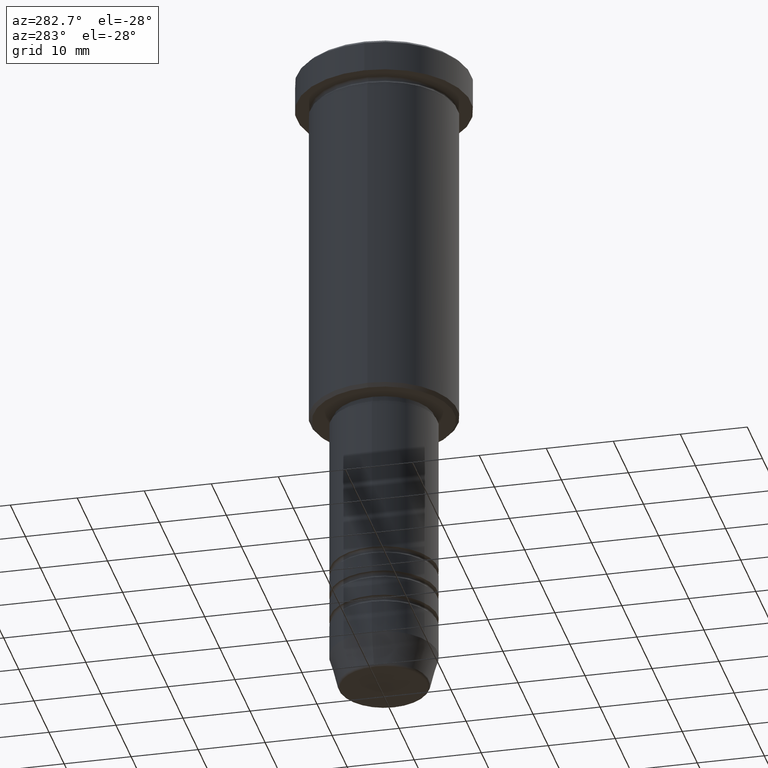
[diagram: clean part render]
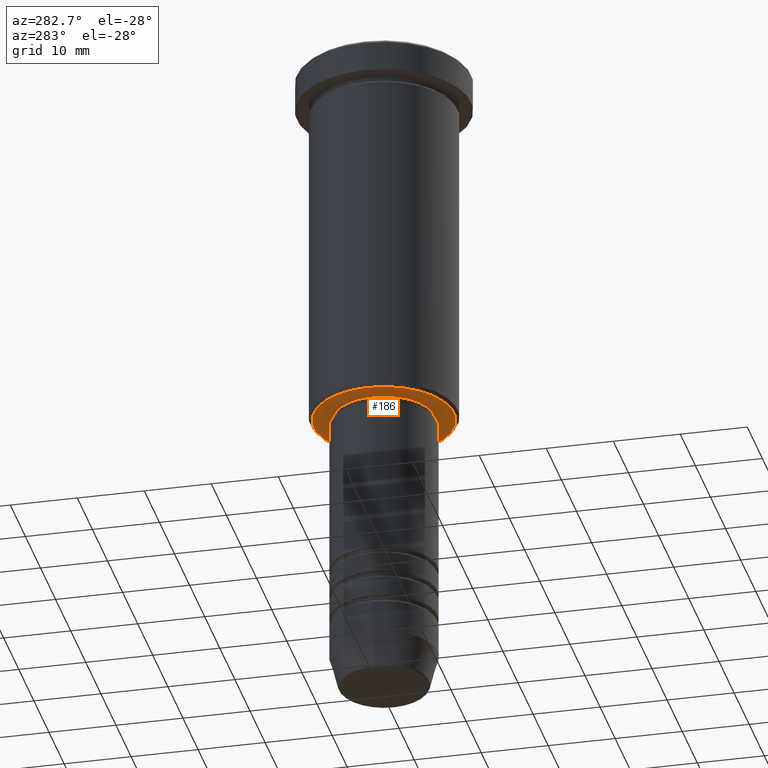
[diagram: same view with one face highlighted and labeled with its STEP entity id]
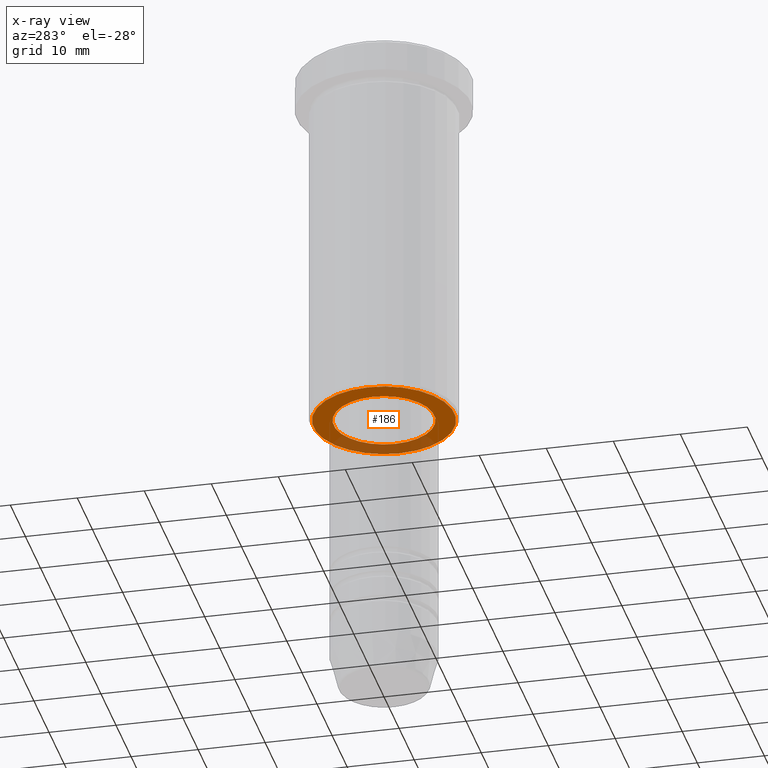
[diagram: x-ray of the same camera — body ghosted, the highlighted face saturated]
A machine part, auxiliary view. The second image highlights one B-rep face of the part: STEP entity #186.
The next image is the same camera in x-ray: the body ghosted, the highlighted face saturated — about 27% of this face is hidden behind the body in this view.
In plain terms, the highlighted planar face has unit normal (0, 0, -1).
Its self-contained STEP definition (entity closure, byte-faithful):
#9 = ORIENTED_EDGE ( 'NONE', *, *, #64, .T. ) ;
#53 = CARTESIAN_POINT ( 'NONE',  ( 0.000000000000000000, 0.000000000000000000, -56.00000000000000000 ) ) ;
#61 = DIRECTION ( 'NONE',  ( 0.000000000000000000, 0.000000000000000000, -1.000000000000000000 ) ) ;
#64 = EDGE_CURVE ( 'NONE', #674, #755, #96, .T. ) ;
#96 = CIRCLE ( 'NONE', #999, 10.50000000000000888 ) ;
#151 = AXIS2_PLACEMENT_3D ( 'NONE', #53, #61, #597 ) ;
#164 = CARTESIAN_POINT ( 'NONE',  ( 7.500000000000000000, 0.000000000000000000, -56.00000000000000000 ) ) ;
#166 = CARTESIAN_POINT ( 'NONE',  ( -10.50000000000000888, 1.316495309083405209E-15, -56.00000000000000000 ) ) ;
#186 = ADVANCED_FACE ( 'NONE', ( #1135, #877 ), #513, .T. ) ;
#194 = VERTEX_POINT ( 'NONE', #164 ) ;
#239 = EDGE_CURVE ( 'NONE', #379, #194, #352, .T. ) ;
#251 = CARTESIAN_POINT ( 'NONE',  ( 10.50000000000000888, 0.000000000000000000, -56.00000000000000000 ) ) ;
#252 = CARTESIAN_POINT ( 'NONE',  ( 0.000000000000000000, 0.000000000000000000, -56.00000000000000000 ) ) ;
#258 = DIRECTION ( 'NONE',  ( 0.000000000000000000, 0.000000000000000000, -1.000000000000000000 ) ) ;
#319 = AXIS2_PLACEMENT_3D ( 'NONE', #519, #258, #795 ) ;
#352 = CIRCLE ( 'NONE', #763, 7.500000000000000000 ) ;
#379 = VERTEX_POINT ( 'NONE', #716 ) ;
#382 = DIRECTION ( 'NONE',  ( -1.000000000000000000, 0.000000000000000000, 0.000000000000000000 ) ) ;
#396 = EDGE_CURVE ( 'NONE', #194, #379, #926, .T. ) ;
#490 = CIRCLE ( 'NONE', #151, 10.50000000000000888 ) ;
#513 = PLANE ( 'NONE',  #319 ) ;
#519 = CARTESIAN_POINT ( 'NONE',  ( 0.000000000000000000, 11.00000000000000000, -56.00000000000000000 ) ) ;
#573 = EDGE_LOOP ( 'NONE', ( #1145, #641 ) ) ;
#597 = DIRECTION ( 'NONE',  ( -1.000000000000000000, 0.000000000000000000, 0.000000000000000000 ) ) ;
#623 = EDGE_CURVE ( 'NONE', #755, #674, #490, .T. ) ;
#641 = ORIENTED_EDGE ( 'NONE', *, *, #239, .T. ) ;
#674 = VERTEX_POINT ( 'NONE', #166 ) ;
#699 = EDGE_LOOP ( 'NONE', ( #873, #9 ) ) ;
#716 = CARTESIAN_POINT ( 'NONE',  ( -7.500000000000000000, 9.184850993605147944E-16, -56.00000000000000000 ) ) ;
#722 = CARTESIAN_POINT ( 'NONE',  ( 0.000000000000000000, 0.000000000000000000, -56.00000000000000000 ) ) ;
#755 = VERTEX_POINT ( 'NONE', #251 ) ;
#763 = AXIS2_PLACEMENT_3D ( 'NONE', #252, #979, #1167 ) ;
#776 = DIRECTION ( 'NONE',  ( 0.000000000000000000, 0.000000000000000000, -1.000000000000000000 ) ) ;
#795 = DIRECTION ( 'NONE',  ( -1.000000000000000000, 0.000000000000000000, -0.000000000000000000 ) ) ;
#815 = AXIS2_PLACEMENT_3D ( 'NONE', #722, #1100, #1079 ) ;
#845 = CARTESIAN_POINT ( 'NONE',  ( 0.000000000000000000, 0.000000000000000000, -56.00000000000000000 ) ) ;
#873 = ORIENTED_EDGE ( 'NONE', *, *, #623, .T. ) ;
#877 = FACE_BOUND ( 'NONE', #573, .T. ) ;
#926 = CIRCLE ( 'NONE', #815, 7.500000000000000000 ) ;
#979 = DIRECTION ( 'NONE',  ( -0.000000000000000000, -0.000000000000000000, 1.000000000000000000 ) ) ;
#999 = AXIS2_PLACEMENT_3D ( 'NONE', #845, #776, #382 ) ;
#1079 = DIRECTION ( 'NONE',  ( 1.000000000000000000, 0.000000000000000000, 0.000000000000000000 ) ) ;
#1100 = DIRECTION ( 'NONE',  ( -0.000000000000000000, -0.000000000000000000, 1.000000000000000000 ) ) ;
#1135 = FACE_OUTER_BOUND ( 'NONE', #699, .T. ) ;
#1145 = ORIENTED_EDGE ( 'NONE', *, *, #396, .T. ) ;
#1167 = DIRECTION ( 'NONE',  ( 1.000000000000000000, 0.000000000000000000, 0.000000000000000000 ) ) ;